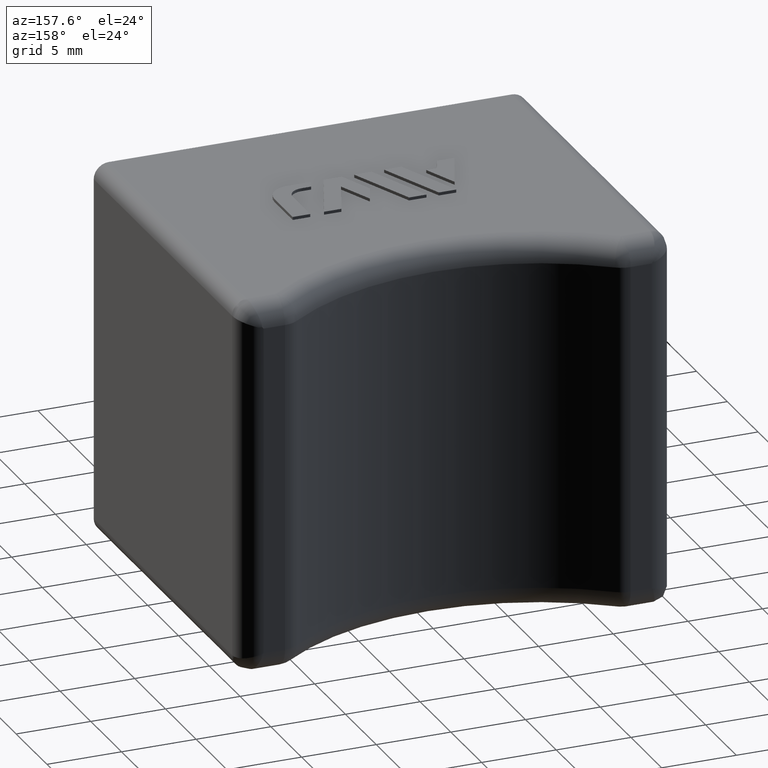
[diagram: clean part render]
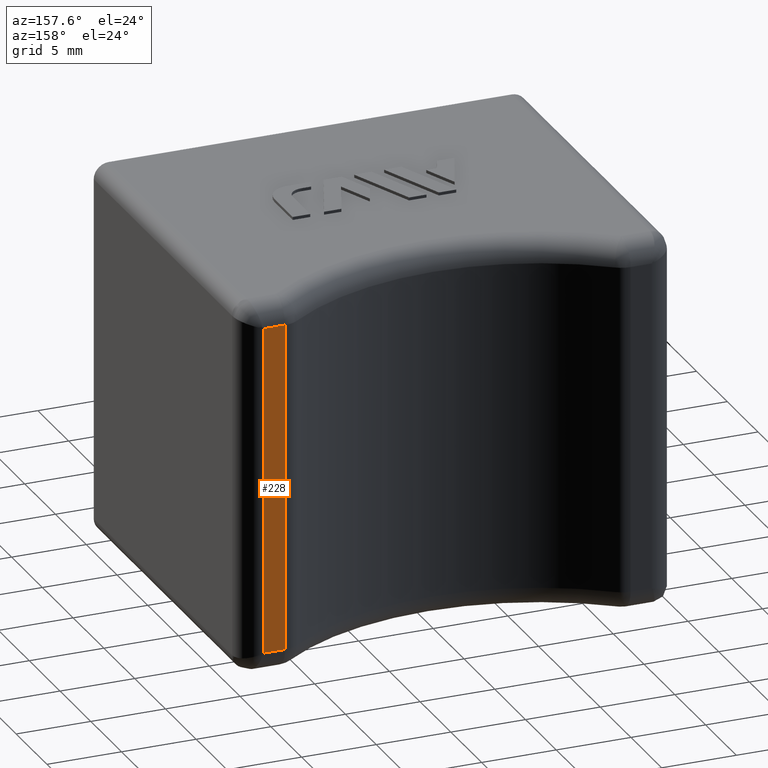
[diagram: same view with one face highlighted and labeled with its STEP entity id]
A machine part, auxiliary view. The second image highlights one B-rep face of the part: STEP entity #228.
In plain terms, the highlighted planar face has unit normal (0, 1, 0).
Its self-contained STEP definition (entity closure, byte-faithful):
#228 = ADVANCED_FACE( '', ( #622 ), #623, .T. );
#622 = FACE_OUTER_BOUND( '', #1338, .T. );
#623 = PLANE( '', #1339 );
#1338 = EDGE_LOOP( '', ( #2960, #2961, #2962, #2963 ) );
#1339 = AXIS2_PLACEMENT_3D( '', #2964, #2965, #2966 );
#2960 = ORIENTED_EDGE( '', *, *, #3851, .T. );
#2961 = ORIENTED_EDGE( '', *, *, #3852, .T. );
#2962 = ORIENTED_EDGE( '', *, *, #3853, .T. );
#2963 = ORIENTED_EDGE( '', *, *, #3854, .T. );
#2964 = CARTESIAN_POINT( '', ( 14.5000000000000, 24.0000000000000, -12.5000000000000 ) );
#2965 = DIRECTION( '', ( 0.000000000000000, 1.00000000000000, 0.000000000000000 ) );
#2966 = DIRECTION( '', ( 1.00000000000000, 0.000000000000000, 0.000000000000000 ) );
#3851 = EDGE_CURVE( '', #4689, #4690, #4691, .T. );
#3852 = EDGE_CURVE( '', #4690, #4692, #4693, .T. );
#3853 = EDGE_CURVE( '', #4692, #4694, #4695, .F. );
#3854 = EDGE_CURVE( '', #4694, #4689, #4696, .F. );
#4689 = VERTEX_POINT( '', #5918 );
#4690 = VERTEX_POINT( '', #5919 );
#4691 = LINE( '', #5920, #5921 );
#4692 = VERTEX_POINT( '', #5922 );
#4693 = LINE( '', #5923, #5924 );
#4694 = VERTEX_POINT( '', #5925 );
#4695 = LINE( '', #5926, #5927 );
#4696 = LINE( '', #5928, #5929 );
#5918 = CARTESIAN_POINT( '', ( 13.0000000000000, 24.0000000000000, -11.0000000000000 ) );
#5919 = CARTESIAN_POINT( '', ( 11.5758369027902, 24.0000000000000, -11.0000000000000 ) );
#5920 = CARTESIAN_POINT( '', ( 14.5000000000000, 24.0000000000000, -11.0000000000000 ) );
#5921 = VECTOR( '', #6701, 1000.00000000000 );
#5922 = CARTESIAN_POINT( '', ( 11.5758369027902, 24.0000000000000, 11.0000000000000 ) );
#5923 = CARTESIAN_POINT( '', ( 11.5758369027902, 24.0000000000000, -12.5000000000000 ) );
#5924 = VECTOR( '', #6702, 1000.00000000000 );
#5925 = CARTESIAN_POINT( '', ( 13.0000000000000, 24.0000000000000, 11.0000000000000 ) );
#5926 = CARTESIAN_POINT( '', ( 13.5000000000000, 24.0000000000000, 11.0000000000000 ) );
#5927 = VECTOR( '', #6703, 1000.00000000000 );
#5928 = CARTESIAN_POINT( '', ( 13.0000000000000, 24.0000000000000, -12.5000000000000 ) );
#5929 = VECTOR( '', #6704, 1000.00000000000 );
#6701 = DIRECTION( '', ( -1.00000000000000, 0.000000000000000, 0.000000000000000 ) );
#6702 = DIRECTION( '', ( 0.000000000000000, 0.000000000000000, 1.00000000000000 ) );
#6703 = DIRECTION( '', ( -1.00000000000000, 0.000000000000000, 0.000000000000000 ) );
#6704 = DIRECTION( '', ( 0.000000000000000, 0.000000000000000, 1.00000000000000 ) );